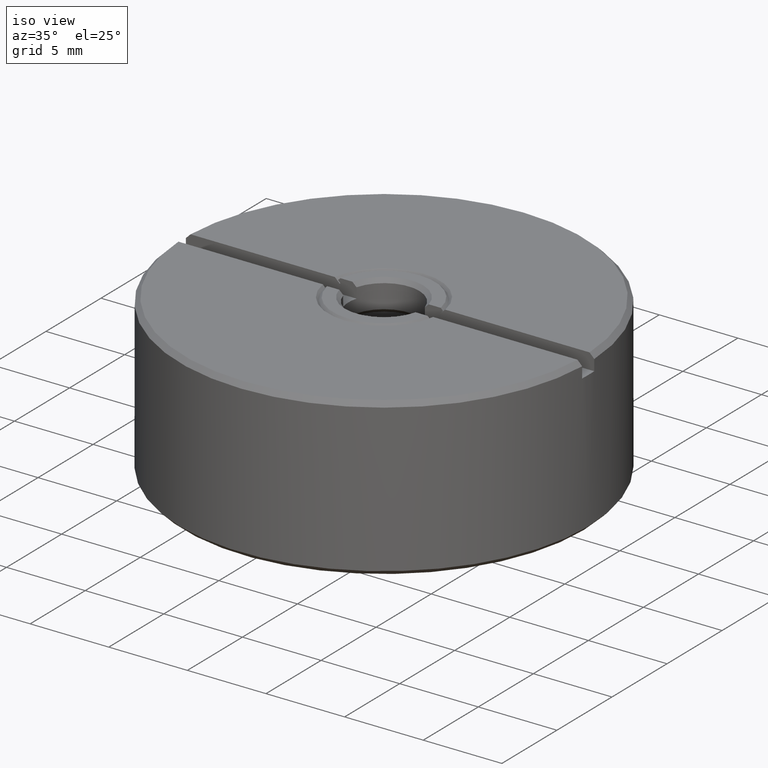
[diagram: clean part render]
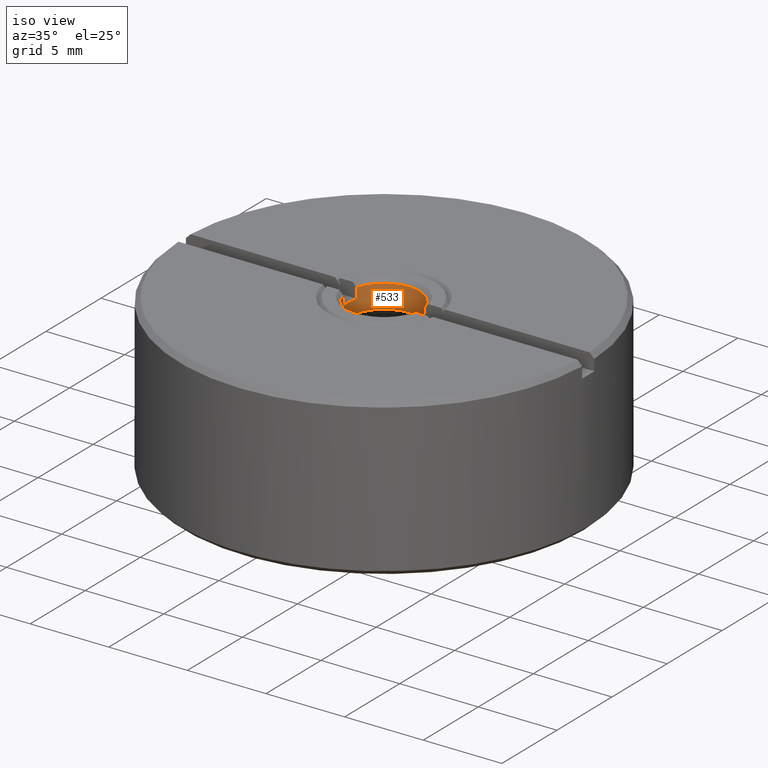
[diagram: same view with one face highlighted and labeled with its STEP entity id]
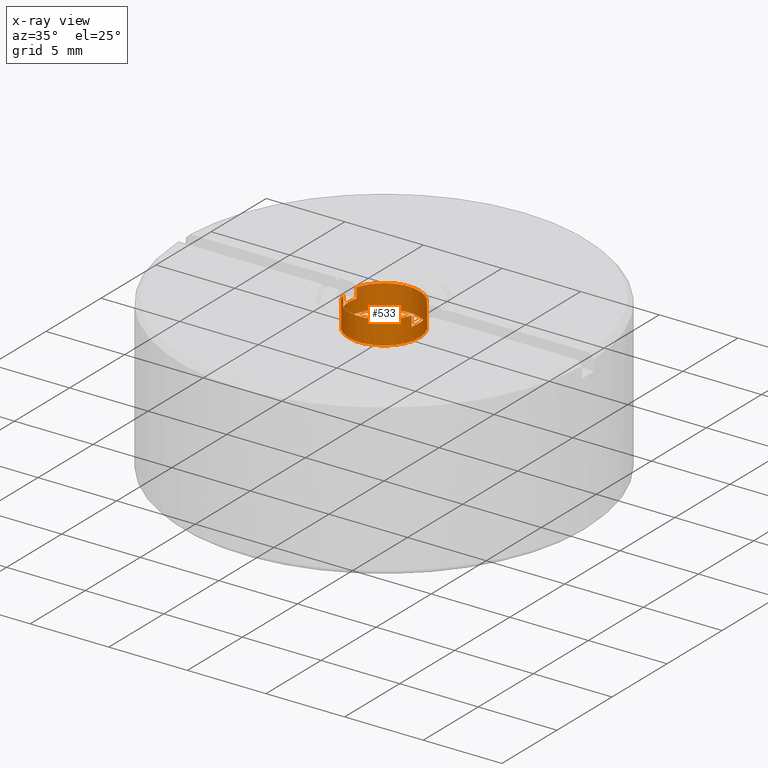
[diagram: x-ray of the same camera — body ghosted, the highlighted face saturated]
A machine part, iso view. The second image highlights one B-rep face of the part: STEP entity #533.
The next image is the same camera in x-ray: the body ghosted, the highlighted face saturated — about 0% of this face is hidden behind the body in this view.
In plain terms, the highlighted cylindrical surface (bore or boss wall) has radius 2.25 mm, axis along (0, 0, 1).
Its self-contained STEP definition (entity closure, byte-faithful):
#2 = DIRECTION ( 'NONE',  ( 0.000000000000000000, 0.000000000000000000, 1.000000000000000000 ) ) ;
#5 = DIRECTION ( 'NONE',  ( -0.000000000000000000, -0.000000000000000000, -1.000000000000000000 ) ) ;
#7 = CARTESIAN_POINT ( 'NONE',  ( 0.000000000000000000, 0.000000000000000000, 3.249999999984538590 ) ) ;
#11 = ORIENTED_EDGE ( 'NONE', *, *, #413, .F. ) ;
#14 = DIRECTION ( 'NONE',  ( 1.000000000000000000, 0.000000000000000000, 0.000000000000000000 ) ) ;
#19 = CARTESIAN_POINT ( 'NONE',  ( 2.168524844220145908, -0.6000000000000010880, 3.000000000000000000 ) ) ;
#52 = VERTEX_POINT ( 'NONE', #161 ) ;
#146 = DIRECTION ( 'NONE',  ( -0.000000000000000000, -0.000000000000000000, -1.000000000000000000 ) ) ;
#152 = CIRCLE ( 'NONE', #368, 2.250000000000001776 ) ;
#156 = LINE ( 'NONE', #530, #1296 ) ;
#161 = CARTESIAN_POINT ( 'NONE',  ( 2.168524844206359159, -0.6000000000000005329, 4.749999999988988364 ) ) ;
#165 = DIRECTION ( 'NONE',  ( 1.000000000000000000, 0.000000000000000000, 0.000000000000000000 ) ) ;
#218 = EDGE_CURVE ( 'NONE', #586, #247, #584, .T. ) ;
#247 = VERTEX_POINT ( 'NONE', #678 ) ;
#267 = ORIENTED_EDGE ( 'NONE', *, *, #1394, .T. ) ;
#273 = EDGE_CURVE ( 'NONE', #52, #693, #152, .T. ) ;
#284 = AXIS2_PLACEMENT_3D ( 'NONE', #1585, #333, #965 ) ;
#320 = EDGE_CURVE ( 'NONE', #536, #586, #393, .T. ) ;
#333 = DIRECTION ( 'NONE',  ( 0.000000000000000000, 0.000000000000000000, 1.000000000000000000 ) ) ;
#334 = VERTEX_POINT ( 'NONE', #705 ) ;
#343 = AXIS2_PLACEMENT_3D ( 'NONE', #1417, #1275, #165 ) ;
#362 = CARTESIAN_POINT ( 'NONE',  ( 0.000000000000000000, 0.000000000000000000, 4.749999999949068297 ) ) ;
#368 = AXIS2_PLACEMENT_3D ( 'NONE', #1236, #891, #776 ) ;
#371 = ORIENTED_EDGE ( 'NONE', *, *, #933, .F. ) ;
#385 = DIRECTION ( 'NONE',  ( 0.000000000000000000, 0.000000000000000000, 1.000000000000000000 ) ) ;
#393 = CIRCLE ( 'NONE', #816, 2.250000000000001776 ) ;
#413 = EDGE_CURVE ( 'NONE', #810, #1248, #156, .T. ) ;
#433 = CARTESIAN_POINT ( 'NONE',  ( -2.168524844220146353, -0.5999999999999994227, 3.000000000000000000 ) ) ;
#461 = CARTESIAN_POINT ( 'NONE',  ( 2.168524844220145908, -0.6000000000000005329, 4.099999999999999645 ) ) ;
#466 = EDGE_CURVE ( 'NONE', #1248, #613, #873, .T. ) ;
#468 = FACE_OUTER_BOUND ( 'NONE', #666, .T. ) ;
#471 = CARTESIAN_POINT ( 'NONE',  ( 0.000000000000000000, 0.000000000000000000, 4.099999999999999645 ) ) ;
#483 = AXIS2_PLACEMENT_3D ( 'NONE', #362, #385, #887 ) ;
#485 = CYLINDRICAL_SURFACE ( 'NONE', #284, 2.250000000000001776 ) ;
#510 = ORIENTED_EDGE ( 'NONE', *, *, #218, .F. ) ;
#516 = EDGE_LOOP ( 'NONE', ( #1115, #1434, #11, #1357, #510, #969, #371, #1185 ) ) ;
#530 = CARTESIAN_POINT ( 'NONE',  ( 2.168524844220146353, 0.6000000000000000888, 3.000000000000000000 ) ) ;
#533 = ADVANCED_FACE ( 'NONE', ( #468, #1319 ), #485, .F. ) ;
#536 = VERTEX_POINT ( 'NONE', #1092 ) ;
#567 = DIRECTION ( 'NONE',  ( 0.000000000000000000, 0.000000000000000000, 1.000000000000000000 ) ) ;
#584 = LINE ( 'NONE', #719, #1019 ) ;
#586 = VERTEX_POINT ( 'NONE', #1459 ) ;
#613 = VERTEX_POINT ( 'NONE', #461 ) ;
#629 = CIRCLE ( 'NONE', #1534, 2.250000000003637979 ) ;
#644 = LINE ( 'NONE', #433, #822 ) ;
#666 = EDGE_LOOP ( 'NONE', ( #267 ) ) ;
#678 = CARTESIAN_POINT ( 'NONE',  ( -2.168524844192543100, 0.6000000000000000888, 4.749999999975671905 ) ) ;
#693 = VERTEX_POINT ( 'NONE', #1014 ) ;
#704 = EDGE_CURVE ( 'NONE', #613, #52, #1105, .T. ) ;
#705 = CARTESIAN_POINT ( 'NONE',  ( -2.250000000003637979, 0.000000000000000000, 3.249999999984538590 ) ) ;
#719 = CARTESIAN_POINT ( 'NONE',  ( -2.168524844220146353, 0.5999999999999999778, 3.000000000000000000 ) ) ;
#739 = DIRECTION ( 'NONE',  ( -1.000000000000000000, 0.000000000000000000, 0.000000000000000000 ) ) ;
#776 = DIRECTION ( 'NONE',  ( 1.000000000000000000, 0.000000000000000000, 0.000000000000000000 ) ) ;
#810 = VERTEX_POINT ( 'NONE', #1058 ) ;
#816 = AXIS2_PLACEMENT_3D ( 'NONE', #471, #5, #14 ) ;
#822 = VECTOR ( 'NONE', #146, 1000.000000000000000 ) ;
#873 = CIRCLE ( 'NONE', #343, 2.250000000000001776 ) ;
#887 = DIRECTION ( 'NONE',  ( 1.000000000000000000, 0.000000000000000000, 0.000000000000000000 ) ) ;
#891 = DIRECTION ( 'NONE',  ( -0.000000000000000000, -0.000000000000000000, -1.000000000000000000 ) ) ;
#933 = EDGE_CURVE ( 'NONE', #693, #536, #644, .T. ) ;
#965 = DIRECTION ( 'NONE',  ( 1.000000000000000000, 0.000000000000000000, 0.000000000000000000 ) ) ;
#969 = ORIENTED_EDGE ( 'NONE', *, *, #320, .F. ) ;
#977 = CIRCLE ( 'NONE', #483, 2.249999999946794560 ) ;
#1011 = DIRECTION ( 'NONE',  ( -0.000000000000000000, -0.000000000000000000, -1.000000000000000000 ) ) ;
#1014 = CARTESIAN_POINT ( 'NONE',  ( -2.168524844206359603, -0.5999999999999996447, 4.749999999987850607 ) ) ;
#1019 = VECTOR ( 'NONE', #567, 1000.000000000000000 ) ;
#1058 = CARTESIAN_POINT ( 'NONE',  ( 2.168524844199860802, 0.6000000000000000888, 4.749999999982724930 ) ) ;
#1092 = CARTESIAN_POINT ( 'NONE',  ( -2.168524844220146353, -0.5999999999999996447, 4.099999999999999645 ) ) ;
#1105 = LINE ( 'NONE', #19, #1503 ) ;
#1115 = ORIENTED_EDGE ( 'NONE', *, *, #704, .F. ) ;
#1185 = ORIENTED_EDGE ( 'NONE', *, *, #273, .F. ) ;
#1195 = CARTESIAN_POINT ( 'NONE',  ( 2.168524844220146353, 0.6000000000000000888, 4.099999999999999645 ) ) ;
#1236 = CARTESIAN_POINT ( 'NONE',  ( 0.000000000000000000, 0.000000000000000000, 4.750000000000000000 ) ) ;
#1248 = VERTEX_POINT ( 'NONE', #1195 ) ;
#1275 = DIRECTION ( 'NONE',  ( -0.000000000000000000, -0.000000000000000000, -1.000000000000000000 ) ) ;
#1296 = VECTOR ( 'NONE', #1522, 1000.000000000000000 ) ;
#1319 = FACE_OUTER_BOUND ( 'NONE', #516, .T. ) ;
#1357 = ORIENTED_EDGE ( 'NONE', *, *, #1440, .T. ) ;
#1394 = EDGE_CURVE ( 'NONE', #334, #334, #629, .T. ) ;
#1417 = CARTESIAN_POINT ( 'NONE',  ( 0.000000000000000000, 0.000000000000000000, 4.099999999999999645 ) ) ;
#1434 = ORIENTED_EDGE ( 'NONE', *, *, #466, .F. ) ;
#1440 = EDGE_CURVE ( 'NONE', #810, #247, #977, .T. ) ;
#1459 = CARTESIAN_POINT ( 'NONE',  ( -2.168524844220728554, 0.6000000000000000888, 4.099999999999999645 ) ) ;
#1503 = VECTOR ( 'NONE', #2, 1000.000000000000000 ) ;
#1522 = DIRECTION ( 'NONE',  ( -0.000000000000000000, -0.000000000000000000, -1.000000000000000000 ) ) ;
#1534 = AXIS2_PLACEMENT_3D ( 'NONE', #7, #1011, #739 ) ;
#1585 = CARTESIAN_POINT ( 'NONE',  ( 0.000000000000000000, 0.000000000000000000, 3.000000000000000000 ) ) ;